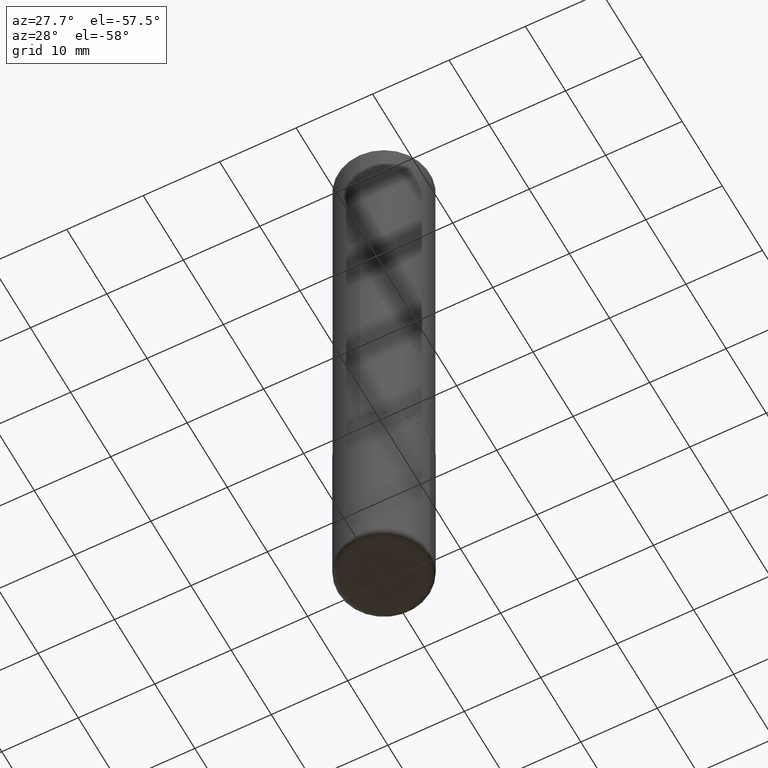
[diagram: clean part render]
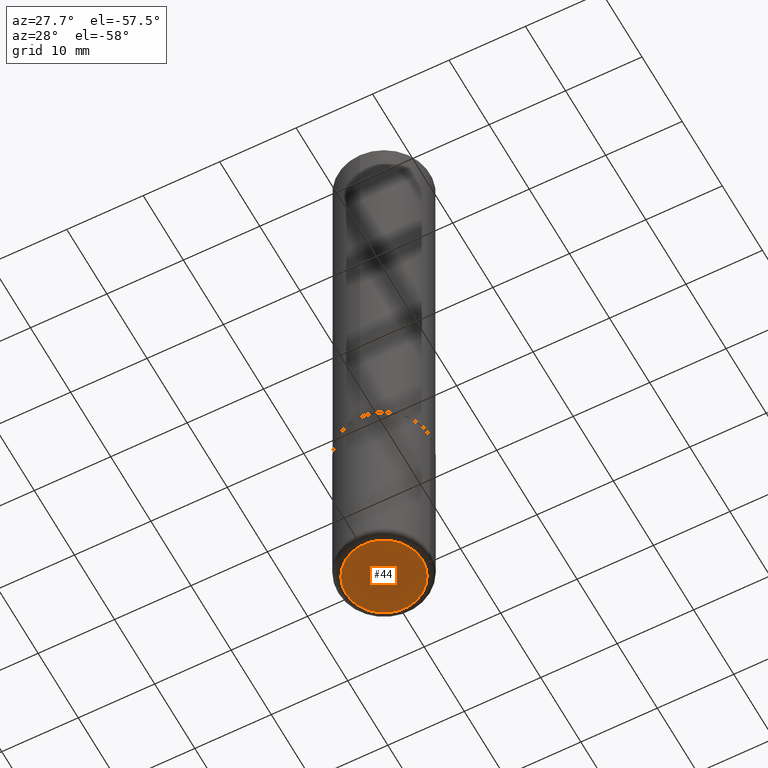
[diagram: same view with one face highlighted and labeled with its STEP entity id]
A machine part, auxiliary view. The second image highlights one B-rep face of the part: STEP entity #44.
In plain terms, the highlighted planar face has unit normal (0, -0, -1).
Its self-contained STEP definition (entity closure, byte-faithful):
#34 = VERTEX_POINT ( 'NONE', #224 ) ;
#44 = ADVANCED_FACE ( 'NONE', ( #106 ), #142, .T. ) ;
#46 = DIRECTION ( 'NONE',  ( -1.000000000000000000, 6.982962677686265922E-15, -4.876176775795935793E-29 ) ) ;
#52 = DIRECTION ( 'NONE',  ( 1.000000000000000000, -6.982962677686271444E-15, 0.000000000000000000 ) ) ;
#56 = EDGE_LOOP ( 'NONE', ( #159, #306 ) ) ;
#81 = CARTESIAN_POINT ( 'NONE',  ( 7.991058417971171713E-29, -1.140911357093774644E-14, -3.267700000000000049 ) ) ;
#84 = CIRCLE ( 'NONE', #203, 0.1968000000000000027 ) ;
#94 = AXIS2_PLACEMENT_3D ( 'NONE', #234, #139, #46 ) ;
#106 = FACE_OUTER_BOUND ( 'NONE', #56, .T. ) ;
#124 = CARTESIAN_POINT ( 'NONE',  ( 7.991058417971171713E-29, -1.140911357093774644E-14, -3.267700000000000049 ) ) ;
#139 = DIRECTION ( 'NONE',  ( 2.438088387897960049E-29, -3.491481338843145188E-15, -1.000000000000000000 ) ) ;
#142 = PLANE ( 'NONE',  #94 ) ;
#159 = ORIENTED_EDGE ( 'NONE', *, *, #352, .F. ) ;
#203 = AXIS2_PLACEMENT_3D ( 'NONE', #81, #212, #52 ) ;
#212 = DIRECTION ( 'NONE',  ( -2.445468806185136597E-29, 3.491481338843145583E-15, 1.000000000000000000 ) ) ;
#215 = AXIS2_PLACEMENT_3D ( 'NONE', #124, #241, #309 ) ;
#224 = CARTESIAN_POINT ( 'NONE',  ( 0.1968000000000000027, -1.278336062590640454E-14, -3.267700000000000049 ) ) ;
#226 = VERTEX_POINT ( 'NONE', #338 ) ;
#234 = CARTESIAN_POINT ( 'NONE',  ( 7.991058417971171713E-29, -1.140911357093774644E-14, -3.267700000000000049 ) ) ;
#241 = DIRECTION ( 'NONE',  ( -2.445468806185136597E-29, 3.491481338843145583E-15, 1.000000000000000000 ) ) ;
#292 = CIRCLE ( 'NONE', #215, 0.1968000000000000027 ) ;
#306 = ORIENTED_EDGE ( 'NONE', *, *, #391, .F. ) ;
#309 = DIRECTION ( 'NONE',  ( 1.000000000000000000, -6.982962677686271444E-15, 0.000000000000000000 ) ) ;
#338 = CARTESIAN_POINT ( 'NONE',  ( -0.1968000000000000027, -9.802006365641922115E-15, -3.267700000000000049 ) ) ;
#352 = EDGE_CURVE ( 'NONE', #34, #226, #292, .T. ) ;
#391 = EDGE_CURVE ( 'NONE', #226, #34, #84, .T. ) ;